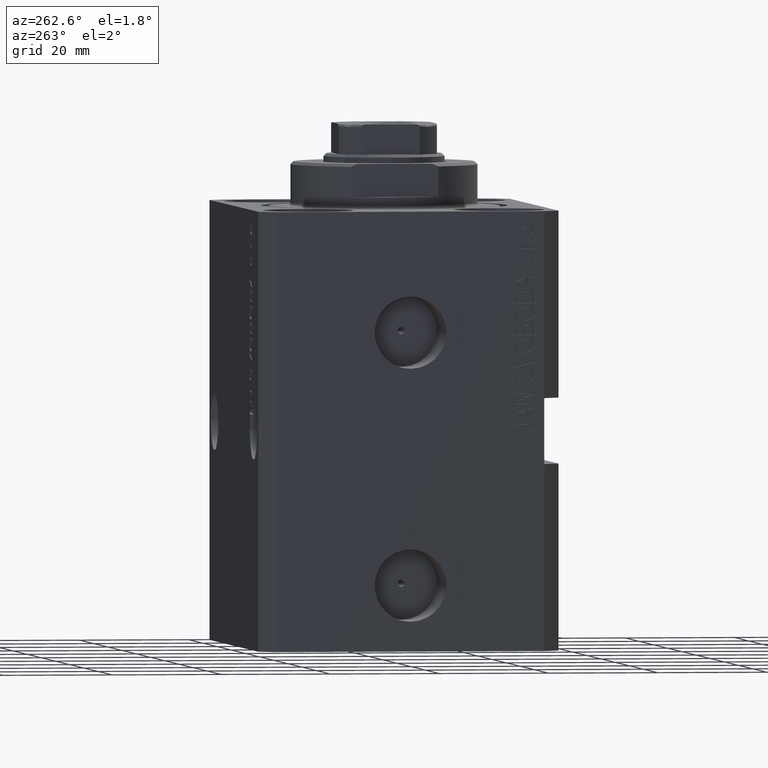
[diagram: clean part render]
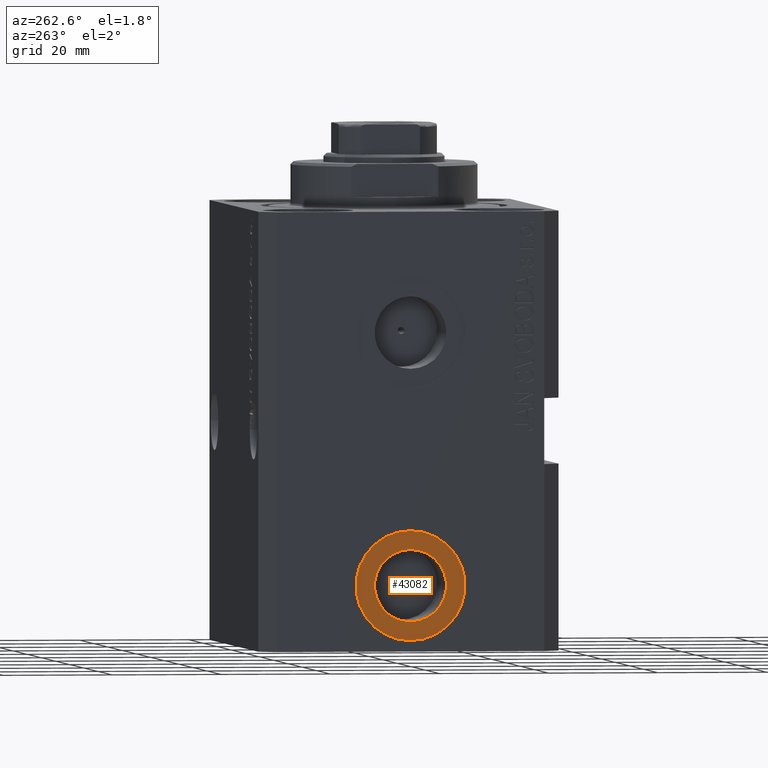
[diagram: same view with one face highlighted and labeled with its STEP entity id]
A machine part, auxiliary view. The second image highlights one B-rep face of the part: STEP entity #43082.
In plain terms, the highlighted planar face has unit normal (-1, 0, 0).
Its self-contained STEP definition (entity closure, byte-faithful):
#148 = CARTESIAN_POINT ( 'NONE',  ( -37.39999999999999147, -7.521780640363043654E-15, -74.58000000000001251 ) ) ;
#191 = VERTEX_POINT ( 'NONE', #38103 ) ;
#1438 = DIRECTION ( 'NONE',  ( 0.000000000000000000, 0.000000000000000000, 1.000000000000000000 ) ) ;
#2538 = EDGE_CURVE ( 'NONE', #20332, #28262, #30300, .T. ) ;
#3009 = EDGE_CURVE ( 'NONE', #17527, #191, #36014, .T. ) ;
#4516 = DIRECTION ( 'NONE',  ( 0.000000000000000000, 0.000000000000000000, 1.000000000000000000 ) ) ;
#4765 = CARTESIAN_POINT ( 'NONE',  ( -37.39999999999999147, -8.327598234202001119E-15, -68.00000000000000000 ) ) ;
#5738 = ORIENTED_EDGE ( 'NONE', *, *, #3009, .T. ) ;
#5984 = CARTESIAN_POINT ( 'NONE',  ( -37.39999999999999147, -8.327598234202001119E-15, -68.00000000000000000 ) ) ;
#6773 = CARTESIAN_POINT ( 'NONE',  ( -37.39999999999999147, -7.102951435054649637E-15, -78.00000000000000000 ) ) ;
#8740 = CARTESIAN_POINT ( 'NONE',  ( -37.39999999999999147, -8.327598234202001119E-15, -68.00000000000000000 ) ) ;
#10006 = CARTESIAN_POINT ( 'NONE',  ( -37.39999999999999147, -8.327598234202001119E-15, -68.00000000000000000 ) ) ;
#11196 = DIRECTION ( 'NONE',  ( -1.000000000000000000, 0.000000000000000000, 0.000000000000000000 ) ) ;
#14281 = FACE_BOUND ( 'NONE', #30088, .T. ) ;
#15906 = CARTESIAN_POINT ( 'NONE',  ( -37.39999999999999147, -8.327598234202001119E-15, -61.42000000000000171 ) ) ;
#16712 = ORIENTED_EDGE ( 'NONE', *, *, #40594, .F. ) ;
#17527 = VERTEX_POINT ( 'NONE', #6773 ) ;
#20332 = VERTEX_POINT ( 'NONE', #15906 ) ;
#20338 = AXIS2_PLACEMENT_3D ( 'NONE', #4765, #31942, #1438 ) ;
#22124 = AXIS2_PLACEMENT_3D ( 'NONE', #5984, #26248, #39192 ) ;
#23593 = DIRECTION ( 'NONE',  ( -1.000000000000000000, 0.000000000000000000, 0.000000000000000000 ) ) ;
#26248 = DIRECTION ( 'NONE',  ( -1.000000000000000000, 0.000000000000000000, 0.000000000000000000 ) ) ;
#26956 = ORIENTED_EDGE ( 'NONE', *, *, #28639, .T. ) ;
#28262 = VERTEX_POINT ( 'NONE', #148 ) ;
#28639 = EDGE_CURVE ( 'NONE', #191, #17527, #39637, .T. ) ;
#28967 = AXIS2_PLACEMENT_3D ( 'NONE', #8740, #11196, #4516 ) ;
#30088 = EDGE_LOOP ( 'NONE', ( #31681, #16712 ) ) ;
#30300 = CIRCLE ( 'NONE', #20338, 6.580000000000002736 ) ;
#31681 = ORIENTED_EDGE ( 'NONE', *, *, #2538, .F. ) ;
#31942 = DIRECTION ( 'NONE',  ( -1.000000000000000000, 0.000000000000000000, 0.000000000000000000 ) ) ;
#35678 = DIRECTION ( 'NONE',  ( -1.000000000000000000, 0.000000000000000000, 0.000000000000000000 ) ) ;
#36014 = CIRCLE ( 'NONE', #36712, 9.999999999999994671 ) ;
#36712 = AXIS2_PLACEMENT_3D ( 'NONE', #39457, #35678, #42812 ) ;
#37194 = DIRECTION ( 'NONE',  ( 0.000000000000000000, 0.000000000000000000, 1.000000000000000000 ) ) ;
#37216 = EDGE_LOOP ( 'NONE', ( #26956, #5738 ) ) ;
#37729 = CIRCLE ( 'NONE', #42727, 6.580000000000002736 ) ;
#38103 = CARTESIAN_POINT ( 'NONE',  ( -37.39999999999999147, -8.327598234202001119E-15, -58.00000000000000711 ) ) ;
#39192 = DIRECTION ( 'NONE',  ( 0.000000000000000000, 0.000000000000000000, 1.000000000000000000 ) ) ;
#39457 = CARTESIAN_POINT ( 'NONE',  ( -37.39999999999999147, -8.327598234202001119E-15, -68.00000000000000000 ) ) ;
#39637 = CIRCLE ( 'NONE', #28967, 9.999999999999994671 ) ;
#39855 = FACE_OUTER_BOUND ( 'NONE', #37216, .T. ) ;
#40594 = EDGE_CURVE ( 'NONE', #28262, #20332, #37729, .T. ) ;
#42727 = AXIS2_PLACEMENT_3D ( 'NONE', #10006, #23593, #37194 ) ;
#42761 = PLANE ( 'NONE',  #22124 ) ;
#42812 = DIRECTION ( 'NONE',  ( 0.000000000000000000, 0.000000000000000000, 1.000000000000000000 ) ) ;
#43082 = ADVANCED_FACE ( 'NONE', ( #14281, #39855 ), #42761, .T. ) ;